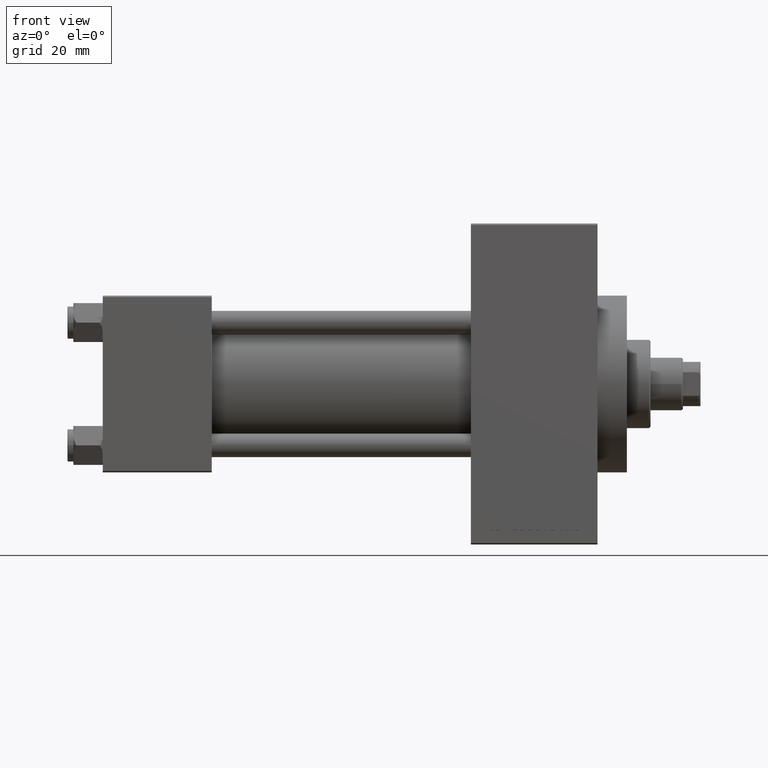
[diagram: clean part render]
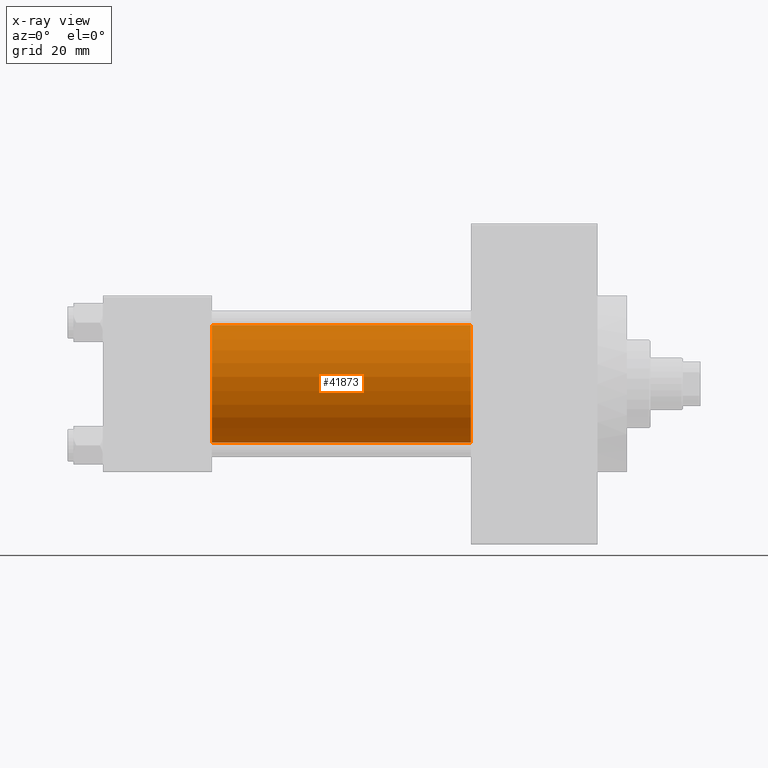
[diagram: x-ray — body ghosted, one internal face saturated and labeled with its STEP entity id]
A machine part, front view, then the same camera in x-ray: the body is ghosted and one INTERNAL B-rep face — a face not visible from any outside direction — is saturated and labeled: STEP entity #41873.
In plain terms, the highlighted cylindrical surface (partial cylindrical patch) has radius 20 mm, axis along (-1, -0, -0).
Its self-contained STEP definition (entity closure, byte-faithful):
#590 = VERTEX_POINT ( 'NONE', #23186 ) ;
#1581 = DIRECTION ( 'NONE',  ( 1.000000000000000000, 0.000000000000000000, 0.000000000000000000 ) ) ;
#2018 = ORIENTED_EDGE ( 'NONE', *, *, #44746, .F. ) ;
#3404 = EDGE_CURVE ( 'NONE', #21279, #44380, #27988, .T. ) ;
#5248 = CARTESIAN_POINT ( 'NONE',  ( 125.0000000000000000, -2.602085213965210642E-15, 20.00000000000000000 ) ) ;
#5339 = ORIENTED_EDGE ( 'NONE', *, *, #3404, .F. ) ;
#5418 = DIRECTION ( 'NONE',  ( 0.000000000000000000, 0.000000000000000000, 1.000000000000000000 ) ) ;
#6394 = VECTOR ( 'NONE', #45723, 1000.000000000000000 ) ;
#9804 = AXIS2_PLACEMENT_3D ( 'NONE', #34117, #45087, #5418 ) ;
#11035 = ORIENTED_EDGE ( 'NONE', *, *, #20546, .T. ) ;
#12210 = VECTOR ( 'NONE', #23183, 1000.000000000000000 ) ;
#12478 = CARTESIAN_POINT ( 'NONE',  ( 125.0000000000000000, -2.602085213965210642E-15, 20.00000000000000000 ) ) ;
#12480 = CARTESIAN_POINT ( 'NONE',  ( 37.00000000000000000, -1.527916156705042519E-16, -20.00000000000000000 ) ) ;
#12687 = DIRECTION ( 'NONE',  ( 1.000000000000000000, 0.000000000000000000, 0.000000000000000000 ) ) ;
#12808 = CARTESIAN_POINT ( 'NONE',  ( 37.00000000000000000, -2.602085213965210642E-15, 0.000000000000000000 ) ) ;
#12919 = CARTESIAN_POINT ( 'NONE',  ( 125.0000000000000000, -2.602085213965210642E-15, 0.000000000000000000 ) ) ;
#13998 = EDGE_CURVE ( 'NONE', #18681, #590, #26080, .T. ) ;
#18051 = CARTESIAN_POINT ( 'NONE',  ( 37.00000000000000000, -2.602085213965210642E-15, 20.00000000000000000 ) ) ;
#18681 = VERTEX_POINT ( 'NONE', #12478 ) ;
#20060 = LINE ( 'NONE', #5248, #12210 ) ;
#20546 = EDGE_CURVE ( 'NONE', #590, #44380, #28451, .T. ) ;
#21279 = VERTEX_POINT ( 'NONE', #18051 ) ;
#22250 = AXIS2_PLACEMENT_3D ( 'NONE', #12919, #12687, #30862 ) ;
#23183 = DIRECTION ( 'NONE',  ( -1.000000000000000000, -0.000000000000000000, -0.000000000000000000 ) ) ;
#23186 = CARTESIAN_POINT ( 'NONE',  ( 125.0000000000000000, -1.527916156705042519E-16, -20.00000000000000000 ) ) ;
#26080 = CIRCLE ( 'NONE', #22250, 20.00000000000000000 ) ;
#27988 = CIRCLE ( 'NONE', #34116, 20.00000000000000000 ) ;
#28451 = LINE ( 'NONE', #34980, #6394 ) ;
#30532 = CYLINDRICAL_SURFACE ( 'NONE', #9804, 20.00000000000000000 ) ;
#30862 = DIRECTION ( 'NONE',  ( 0.000000000000000000, 0.000000000000000000, -1.000000000000000000 ) ) ;
#34116 = AXIS2_PLACEMENT_3D ( 'NONE', #12808, #1581, #34794 ) ;
#34117 = CARTESIAN_POINT ( 'NONE',  ( 125.0000000000000000, -2.602085213965210642E-15, 0.000000000000000000 ) ) ;
#34794 = DIRECTION ( 'NONE',  ( 0.000000000000000000, 0.000000000000000000, -1.000000000000000000 ) ) ;
#34980 = CARTESIAN_POINT ( 'NONE',  ( 125.0000000000000000, -1.527916156705042519E-16, -20.00000000000000000 ) ) ;
#38160 = FACE_OUTER_BOUND ( 'NONE', #43215, .T. ) ;
#41222 = ORIENTED_EDGE ( 'NONE', *, *, #13998, .T. ) ;
#41873 = ADVANCED_FACE ( 'NONE', ( #38160 ), #30532, .F. ) ;
#43215 = EDGE_LOOP ( 'NONE', ( #41222, #11035, #5339, #2018 ) ) ;
#44380 = VERTEX_POINT ( 'NONE', #12480 ) ;
#44746 = EDGE_CURVE ( 'NONE', #18681, #21279, #20060, .T. ) ;
#45087 = DIRECTION ( 'NONE',  ( -1.000000000000000000, -0.000000000000000000, -0.000000000000000000 ) ) ;
#45723 = DIRECTION ( 'NONE',  ( -1.000000000000000000, -0.000000000000000000, -0.000000000000000000 ) ) ;